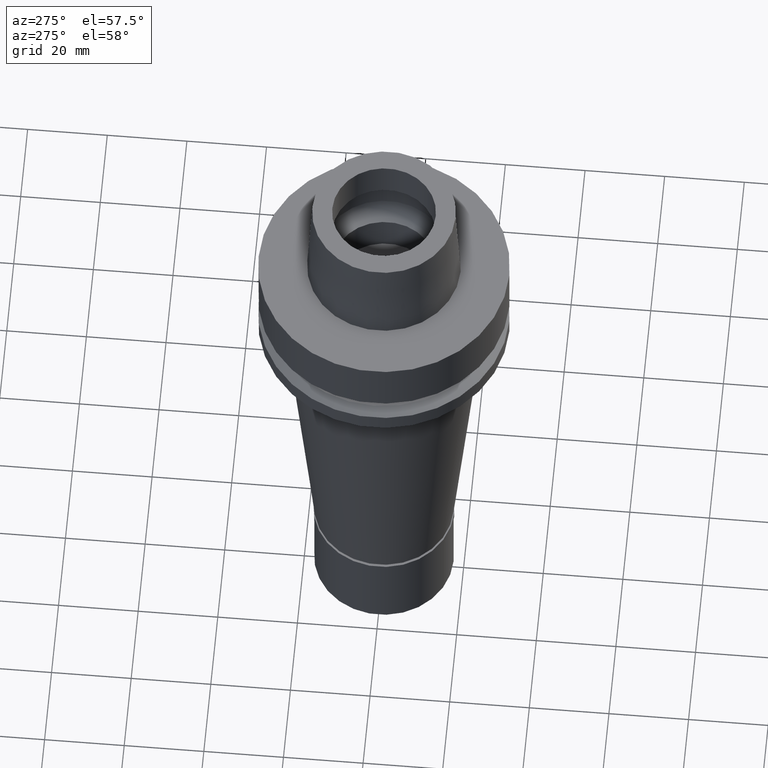
[diagram: clean part render]
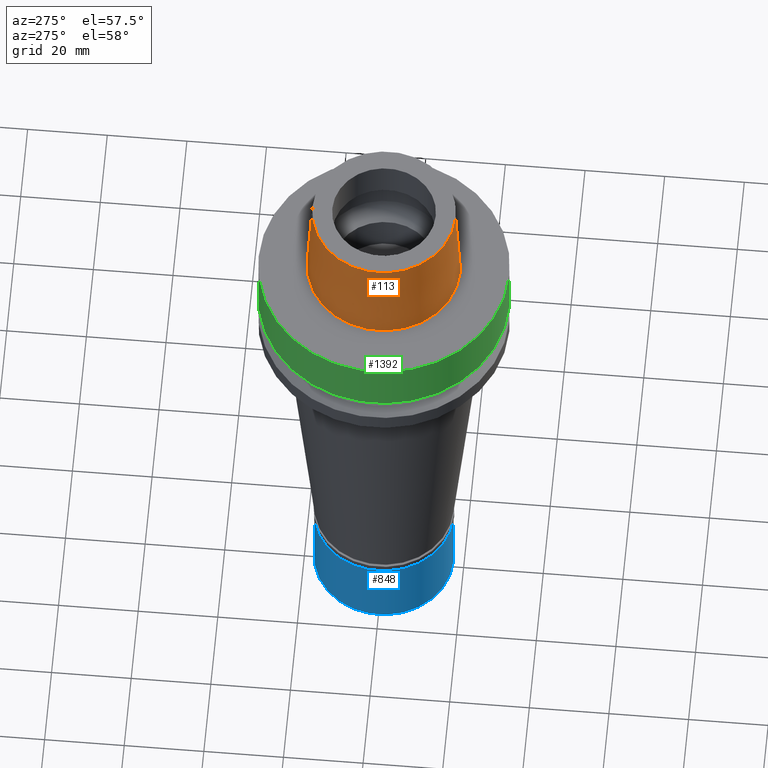
[diagram: same view with three faces highlighted in distinct colors, each labeled with its STEP entity id]
A machine part, auxiliary view with three faces highlighted in distinct colors.
Their STEP definitions:

[orange] entity #113 — the highlighted conical surface has half-angle 2.862 deg.
#8 = VERTEX_POINT ( 'NONE', #1832 ) ;
#15 = CARTESIAN_POINT ( 'NONE',  ( 0.0000000000000000000, -18.00000182882000033, 25.00000000000000000 ) ) ;
#113 = ADVANCED_FACE ( 'NONE', ( #619 ), #2637, .T. ) ;
#166 = DIRECTION ( 'NONE',  ( 0.0000000000000000000, 0.04993752584486958745, -0.9987523434327917338 ) ) ;
#287 = AXIS2_PLACEMENT_3D ( 'NONE', #1678, #2162, #1472 ) ;
#451 = CIRCLE ( 'NONE', #1334, 19.24999954280000125 ) ;
#518 = ORIENTED_EDGE ( 'NONE', *, *, #553, .T. ) ;
#553 = EDGE_CURVE ( 'NONE', #1230, #8, #1991, .T. ) ;
#584 = EDGE_CURVE ( 'NONE', #8, #611, #1715, .T. ) ;
#611 = VERTEX_POINT ( 'NONE', #1038 ) ;
#619 = FACE_OUTER_BOUND ( 'NONE', #1273, .T. ) ;
#681 = ORIENTED_EDGE ( 'NONE', *, *, #584, .T. ) ;
#687 = DIRECTION ( 'NONE',  ( 0.0000000000000000000, -0.04993752584486958745, -0.9987523434327917338 ) ) ;
#782 = EDGE_CURVE ( 'NONE', #1230, #2202, #2666, .T. ) ;
#805 = ORIENTED_EDGE ( 'NONE', *, *, #2349, .T. ) ;
#833 = DIRECTION ( 'NONE',  ( 0.0000000000000000000, 0.0000000000000000000, -1.000000000000000000 ) ) ;
#1038 = CARTESIAN_POINT ( 'NONE',  ( 0.0000000000000000000, 19.24999954280000125, 3.410605131648000255E-13 ) ) ;
#1230 = VERTEX_POINT ( 'NONE', #1405 ) ;
#1264 = CARTESIAN_POINT ( 'NONE',  ( 0.0000000000000000000, 0.0000000000000000000, 25.00000000000000000 ) ) ;
#1273 = EDGE_LOOP ( 'NONE', ( #805, #1445, #518, #681 ) ) ;
#1285 = CARTESIAN_POINT ( 'NONE',  ( 0.0000000000000000000, 0.0000000000000000000, 5.115907697473000027E-13 ) ) ;
#1334 = AXIS2_PLACEMENT_3D ( 'NONE', #1285, #2159, #2841 ) ;
#1405 = CARTESIAN_POINT ( 'NONE',  ( 0.0000000000000000000, -18.00000182882000033, 25.00000000000000000 ) ) ;
#1436 = CARTESIAN_POINT ( 'NONE',  ( 0.0000000000000000000, -19.24999954280000125, 3.410605131648000255E-13 ) ) ;
#1444 = AXIS2_PLACEMENT_3D ( 'NONE', #1264, #833, #2119 ) ;
#1445 = ORIENTED_EDGE ( 'NONE', *, *, #782, .F. ) ;
#1472 = DIRECTION ( 'NONE',  ( 0.0000000000000000000, -1.000000000000000000, 0.0000000000000000000 ) ) ;
#1678 = CARTESIAN_POINT ( 'NONE',  ( 0.0000000000000000000, 0.0000000000000000000, 12.50000000000000000 ) ) ;
#1715 = LINE ( 'NONE', #2138, #2591 ) ;
#1832 = CARTESIAN_POINT ( 'NONE',  ( 0.0000000000000000000, 18.00000182882000033, 25.00000000000000000 ) ) ;
#1991 = CIRCLE ( 'NONE', #1444, 18.00000182882000033 ) ;
#2119 = DIRECTION ( 'NONE',  ( 0.0000000000000000000, -1.000000000000000000, 0.0000000000000000000 ) ) ;
#2138 = CARTESIAN_POINT ( 'NONE',  ( 0.0000000000000000000, 18.00000182882000033, 25.00000000000000000 ) ) ;
#2159 = DIRECTION ( 'NONE',  ( 0.0000000000000000000, 0.0000000000000000000, 1.000000000000000000 ) ) ;
#2162 = DIRECTION ( 'NONE',  ( 0.0000000000000000000, 0.0000000000000000000, -1.000000000000000000 ) ) ;
#2202 = VERTEX_POINT ( 'NONE', #1436 ) ;
#2349 = EDGE_CURVE ( 'NONE', #611, #2202, #451, .T. ) ;
#2407 = VECTOR ( 'NONE', #687, 999.9999999999998863 ) ;
#2591 = VECTOR ( 'NONE', #166, 999.9999999999998863 ) ;
#2637 = CONICAL_SURFACE ( 'NONE', #287, 18.62500068580999724, 0.04995830450907576964 ) ;
#2666 = LINE ( 'NONE', #15, #2407 ) ;
#2841 = DIRECTION ( 'NONE',  ( 0.0000000000000000000, 1.000000000000000000, 0.0000000000000000000 ) ) ;

[blue] entity #848 — the highlighted cylindrical surface (partial cylindrical patch) has radius 17.5 mm, axis along (0, 0, -1).
#186 = AXIS2_PLACEMENT_3D ( 'NONE', #629, #646, #2612 ) ;
#270 = LINE ( 'NONE', #952, #1884 ) ;
#292 = EDGE_CURVE ( 'NONE', #623, #2553, #2086, .T. ) ;
#310 = EDGE_LOOP ( 'NONE', ( #1718, #2019, #2476, #2654 ) ) ;
#370 = CIRCLE ( 'NONE', #969, 17.50000000000000000 ) ;
#385 = CARTESIAN_POINT ( 'NONE',  ( 0.0000000000000000000, -17.50000000000000000, -2.000000000000000000 ) ) ;
#409 = VERTEX_POINT ( 'NONE', #897 ) ;
#412 = DIRECTION ( 'NONE',  ( 0.0000000000000000000, -1.000000000000000000, 0.0000000000000000000 ) ) ;
#471 = CARTESIAN_POINT ( 'NONE',  ( 0.0000000000000000000, -17.50000000000000000, -22.50000000000000000 ) ) ;
#623 = VERTEX_POINT ( 'NONE', #806 ) ;
#629 = CARTESIAN_POINT ( 'NONE',  ( 0.0000000000000000000, 0.0000000000000000000, -22.50000000000000000 ) ) ;
#646 = DIRECTION ( 'NONE',  ( 0.0000000000000000000, 0.0000000000000000000, 1.000000000000000000 ) ) ;
#806 = CARTESIAN_POINT ( 'NONE',  ( 0.0000000000000000000, 17.50000000000000000, -22.50000000000000000 ) ) ;
#848 = ADVANCED_FACE ( 'NONE', ( #1528 ), #1780, .T. ) ;
#897 = CARTESIAN_POINT ( 'NONE',  ( 0.0000000000000000000, 17.50000000000000000, -2.000000000000000000 ) ) ;
#947 = EDGE_CURVE ( 'NONE', #2761, #2553, #270, .T. ) ;
#952 = CARTESIAN_POINT ( 'NONE',  ( 0.0000000000000000000, -17.50000000000000000, -2.000000000000000000 ) ) ;
#969 = AXIS2_PLACEMENT_3D ( 'NONE', #1197, #1022, #2745 ) ;
#1022 = DIRECTION ( 'NONE',  ( 0.0000000000000000000, 0.0000000000000000000, -1.000000000000000000 ) ) ;
#1058 = VECTOR ( 'NONE', #1766, 1000.000000000000000 ) ;
#1124 = EDGE_CURVE ( 'NONE', #409, #623, #2444, .T. ) ;
#1128 = CARTESIAN_POINT ( 'NONE',  ( 0.0000000000000000000, 0.0000000000000000000, 0.0000000000000000000 ) ) ;
#1197 = CARTESIAN_POINT ( 'NONE',  ( 0.0000000000000000000, 0.0000000000000000000, -2.000000000000000000 ) ) ;
#1365 = CARTESIAN_POINT ( 'NONE',  ( 0.0000000000000000000, 17.50000000000000000, -2.000000000000000000 ) ) ;
#1458 = EDGE_CURVE ( 'NONE', #2761, #409, #370, .T. ) ;
#1528 = FACE_OUTER_BOUND ( 'NONE', #310, .T. ) ;
#1718 = ORIENTED_EDGE ( 'NONE', *, *, #292, .T. ) ;
#1766 = DIRECTION ( 'NONE',  ( 0.0000000000000000000, 0.0000000000000000000, -1.000000000000000000 ) ) ;
#1780 = CYLINDRICAL_SURFACE ( 'NONE', #2175, 17.50000000000000000 ) ;
#1798 = DIRECTION ( 'NONE',  ( 0.0000000000000000000, 0.0000000000000000000, -1.000000000000000000 ) ) ;
#1884 = VECTOR ( 'NONE', #1798, 1000.000000000000000 ) ;
#2002 = DIRECTION ( 'NONE',  ( 0.0000000000000000000, 0.0000000000000000000, -1.000000000000000000 ) ) ;
#2019 = ORIENTED_EDGE ( 'NONE', *, *, #947, .F. ) ;
#2086 = CIRCLE ( 'NONE', #186, 17.50000000000000000 ) ;
#2175 = AXIS2_PLACEMENT_3D ( 'NONE', #1128, #2002, #412 ) ;
#2444 = LINE ( 'NONE', #1365, #1058 ) ;
#2476 = ORIENTED_EDGE ( 'NONE', *, *, #1458, .T. ) ;
#2553 = VERTEX_POINT ( 'NONE', #471 ) ;
#2612 = DIRECTION ( 'NONE',  ( 0.0000000000000000000, 1.000000000000000000, 0.0000000000000000000 ) ) ;
#2654 = ORIENTED_EDGE ( 'NONE', *, *, #1124, .T. ) ;
#2745 = DIRECTION ( 'NONE',  ( 0.0000000000000000000, -1.000000000000000000, 0.0000000000000000000 ) ) ;
#2761 = VERTEX_POINT ( 'NONE', #385 ) ;

[green] entity #1392 — the highlighted cylindrical surface (partial cylindrical patch) has radius 31.5 mm, axis along (0, 0, 1).
#29 = DIRECTION ( 'NONE',  ( 0.0000000000000000000, -4.130355870612999632E-14, -1.000000000000000000 ) ) ;
#158 = EDGE_CURVE ( 'NONE', #503, #2050, #185, .T. ) ;
#185 = LINE ( 'NONE', #2385, #607 ) ;
#222 = AXIS2_PLACEMENT_3D ( 'NONE', #1004, #542, #2787 ) ;
#242 = CARTESIAN_POINT ( 'NONE',  ( 0.0000000000000000000, 0.0000000000000000000, 1.136868377215999875E-13 ) ) ;
#503 = VERTEX_POINT ( 'NONE', #1584 ) ;
#542 = DIRECTION ( 'NONE',  ( 0.0000000000000000000, 0.0000000000000000000, 1.000000000000000000 ) ) ;
#607 = VECTOR ( 'NONE', #2374, 1000.000000000000000 ) ;
#750 = VERTEX_POINT ( 'NONE', #1359 ) ;
#769 = EDGE_CURVE ( 'NONE', #750, #503, #835, .T. ) ;
#790 = FACE_OUTER_BOUND ( 'NONE', #1645, .T. ) ;
#835 = CIRCLE ( 'NONE', #2457, 31.50000000000000000 ) ;
#1004 = CARTESIAN_POINT ( 'NONE',  ( 0.0000000000000000000, 0.0000000000000000000, -135.9650000000000034 ) ) ;
#1112 = DIRECTION ( 'NONE',  ( 0.0000000000000000000, 0.0000000000000000000, -1.000000000000000000 ) ) ;
#1333 = ORIENTED_EDGE ( 'NONE', *, *, #158, .T. ) ;
#1359 = CARTESIAN_POINT ( 'NONE',  ( 0.0000000000000000000, -31.50000000000000000, 1.136868377215999875E-13 ) ) ;
#1392 = ADVANCED_FACE ( 'NONE', ( #790 ), #2348, .T. ) ;
#1440 = CIRCLE ( 'NONE', #2040, 31.50000000000000000 ) ;
#1541 = DIRECTION ( 'NONE',  ( 0.0000000000000000000, -1.000000000000000000, 0.0000000000000000000 ) ) ;
#1584 = CARTESIAN_POINT ( 'NONE',  ( 0.0000000000000000000, 31.50000000000000000, 1.136868377215999875E-13 ) ) ;
#1645 = EDGE_LOOP ( 'NONE', ( #2003, #2102, #1658, #1333 ) ) ;
#1648 = EDGE_CURVE ( 'NONE', #2050, #2416, #1440, .T. ) ;
#1658 = ORIENTED_EDGE ( 'NONE', *, *, #769, .T. ) ;
#1792 = CARTESIAN_POINT ( 'NONE',  ( 0.0000000000000000000, -31.50000000000000000, 7.579122514774000189E-14 ) ) ;
#1931 = VECTOR ( 'NONE', #29, 1000.000000000000000 ) ;
#2003 = ORIENTED_EDGE ( 'NONE', *, *, #1648, .T. ) ;
#2040 = AXIS2_PLACEMENT_3D ( 'NONE', #2806, #2368, #2796 ) ;
#2050 = VERTEX_POINT ( 'NONE', #2511 ) ;
#2102 = ORIENTED_EDGE ( 'NONE', *, *, #2697, .F. ) ;
#2235 = LINE ( 'NONE', #1792, #1931 ) ;
#2348 = CYLINDRICAL_SURFACE ( 'NONE', #222, 31.50000000000000000 ) ;
#2368 = DIRECTION ( 'NONE',  ( 0.0000000000000000000, 0.0000000000000000000, 1.000000000000000000 ) ) ;
#2374 = DIRECTION ( 'NONE',  ( 0.0000000000000000000, 4.130355870612999632E-14, -1.000000000000000000 ) ) ;
#2385 = CARTESIAN_POINT ( 'NONE',  ( 0.0000000000000000000, 31.50000000000000000, 7.579122514774000189E-14 ) ) ;
#2416 = VERTEX_POINT ( 'NONE', #2655 ) ;
#2457 = AXIS2_PLACEMENT_3D ( 'NONE', #242, #1112, #1541 ) ;
#2511 = CARTESIAN_POINT ( 'NONE',  ( 0.0000000000000000000, 31.50000000000000000, -14.62250092523999889 ) ) ;
#2655 = CARTESIAN_POINT ( 'NONE',  ( 0.0000000000000000000, -31.50000000000000000, -14.62250092523999889 ) ) ;
#2697 = EDGE_CURVE ( 'NONE', #750, #2416, #2235, .T. ) ;
#2787 = DIRECTION ( 'NONE',  ( 0.0000000000000000000, 1.000000000000000000, 0.0000000000000000000 ) ) ;
#2796 = DIRECTION ( 'NONE',  ( 0.0000000000000000000, 1.000000000000000000, 0.0000000000000000000 ) ) ;
#2806 = CARTESIAN_POINT ( 'NONE',  ( 0.0000000000000000000, 0.0000000000000000000, -14.62250092523999889 ) ) ;